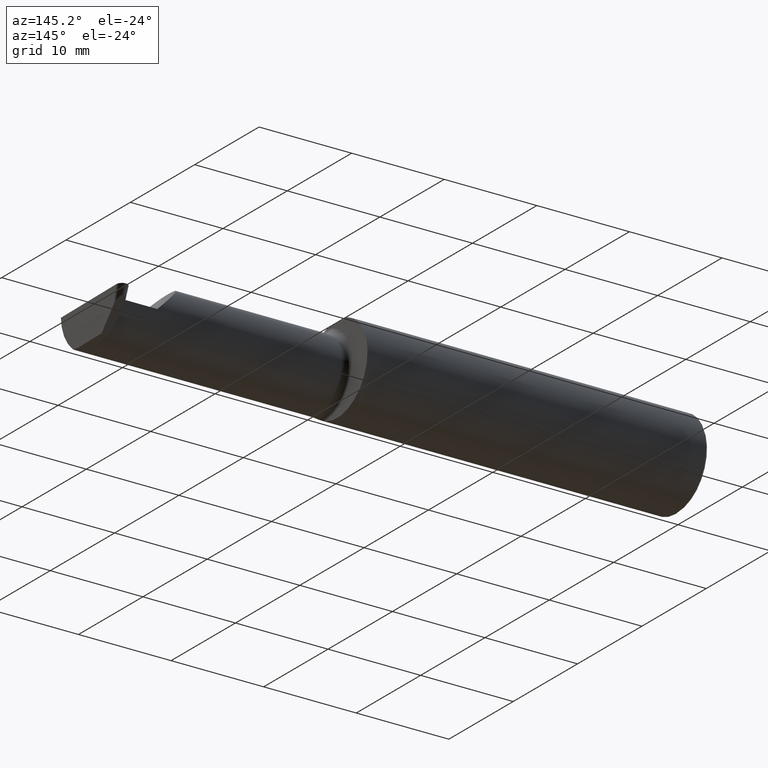
[diagram: clean part render]
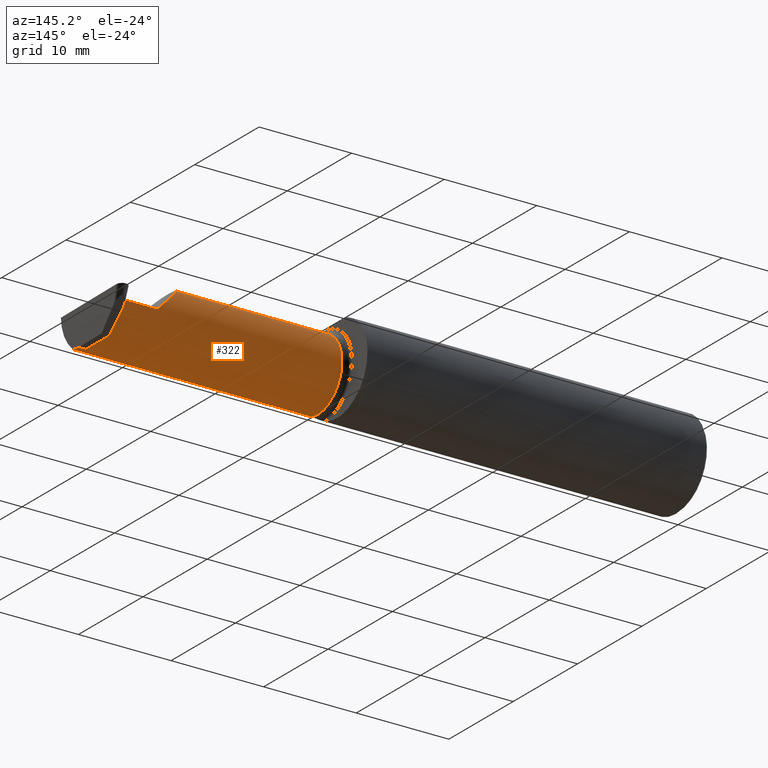
[diagram: same view with one face highlighted and labeled with its STEP entity id]
A machine part, auxiliary view. The second image highlights one B-rep face of the part: STEP entity #322.
In plain terms, the highlighted cylindrical surface (partial cylindrical patch) has radius 3.81 mm, axis along (-1, -0, -0).
Its self-contained STEP definition (entity closure, byte-faithful):
#12 = LINE ( 'NONE', #443, #138 ) ;
#14 = EDGE_CURVE ( 'NONE', #25, #652, #151, .T. ) ;
#19 = CARTESIAN_POINT ( 'NONE',  ( 2.460115337567889249, -0.08334999999999999354, -0.1499999999999999944 ) ) ;
#25 = VERTEX_POINT ( 'NONE', #195 ) ;
#26 = CARTESIAN_POINT ( 'NONE',  ( 2.490497255146305822, -0.08335000000000003517, -0.1500000000000000500 ) ) ;
#31 = VERTEX_POINT ( 'NONE', #35 ) ;
#35 = CARTESIAN_POINT ( 'NONE',  ( 1.474999999999999867, -0.1172600179964005812, -0.1461167706989303650 ) ) ;
#52 = DIRECTION ( 'NONE',  ( 0.000000000000000000, -1.000000000000000000, 0.000000000000000000 ) ) ;
#59 = VECTOR ( 'NONE', #547, 39.37007874015748143 ) ;
#73 = DIRECTION ( 'NONE',  ( -1.000000000000000000, -0.000000000000000000, -0.000000000000000000 ) ) ;
#78 = VERTEX_POINT ( 'NONE', #479 ) ;
#83 =( BOUNDED_CURVE ( )  B_SPLINE_CURVE ( 3, ( #559, #386, #186, #26 ),
 .UNSPECIFIED., .F., .T. ) 
 B_SPLINE_CURVE_WITH_KNOTS ( ( 4, 4 ),
 ( 0.2354267821558766738, 0.4634648172053205673 ),
 .UNSPECIFIED. ) 
 CURVE ( )  GEOMETRIC_REPRESENTATION_ITEM ( )  RATIONAL_B_SPLINE_CURVE ( ( 1.000000000000000000, 0.9956712472009929815, 0.9956712472009929815, 1.000000000000000000 ) ) 
 REPRESENTATION_ITEM ( '' )  );
#85 = ORIENTED_EDGE ( 'NONE', *, *, #444, .F. ) ;
#89 = VECTOR ( 'NONE', #488, 39.37007874015748143 ) ;
#90 = CARTESIAN_POINT ( 'NONE',  ( 2.113883229301068312, -0.1172600179964011224, 0.1461167706989300596 ) ) ;
#105 = ORIENTED_EDGE ( 'NONE', *, *, #670, .F. ) ;
#117 = B_SPLINE_CURVE_WITH_KNOTS ( 'NONE', 3,
 ( #396, #280, #605, #615 ),
 .UNSPECIFIED., .F., .F.,
 ( 4, 4 ),
 ( 0.000000000000000000, 1.000000000000000000 ),
 .UNSPECIFIED. ) ;
#137 = CARTESIAN_POINT ( 'NONE',  ( 2.733184360054361939, -0.08335000000000003517, -0.1500000000000000500 ) ) ;
#138 = VECTOR ( 'NONE', #336, 39.37007874015748143 ) ;
#145 = VERTEX_POINT ( 'NONE', #161 ) ;
#151 =( BOUNDED_CURVE ( )  B_SPLINE_CURVE ( 3, ( #90, #683, #520, #464 ),
 .UNSPECIFIED., .F., .F. ) 
 B_SPLINE_CURVE_WITH_KNOTS ( ( 4, 4 ),
 ( 6.055147272130139591, 7.853981633974482790 ),
 .UNSPECIFIED. ) 
 CURVE ( )  GEOMETRIC_REPRESENTATION_ITEM ( )  RATIONAL_B_SPLINE_CURVE ( ( 1.000000000000000000, 0.7480442670255260662, 0.7480442670255260662, 1.000000000000000000 ) ) 
 REPRESENTATION_ITEM ( '' )  );
#153 = AXIS2_PLACEMENT_3D ( 'NONE', #173, #639, #428 ) ;
#161 = CARTESIAN_POINT ( 'NONE',  ( 1.474999999999999867, -0.1172600179964005812, 0.1461167706989303927 ) ) ;
#173 = CARTESIAN_POINT ( 'NONE',  ( 1.450000000000000178, -0.08335000000000004905, 0.000000000000000000 ) ) ;
#186 = CARTESIAN_POINT ( 'NONE',  ( 2.490297801769516539, -0.09477667630339423055, -0.1499999999999999944 ) ) ;
#195 = CARTESIAN_POINT ( 'NONE',  ( 2.113883229301068312, -0.1172600179964011224, 0.1461167706989300596 ) ) ;
#201 = VECTOR ( 'NONE', #73, 39.37007874015748143 ) ;
#212 = EDGE_CURVE ( 'NONE', #274, #476, #545, .T. ) ;
#219 = CARTESIAN_POINT ( 'NONE',  ( 2.447545874117295739, 0.06664999999999991764, 0.000000000000000000 ) ) ;
#225 = CARTESIAN_POINT ( 'NONE',  ( 2.454977397848501219, 0.06628460753894979685, -0.01046347106162132459 ) ) ;
#241 = ORIENTED_EDGE ( 'NONE', *, *, #537, .T. ) ;
#261 = CARTESIAN_POINT ( 'NONE',  ( 1.474999999999999867, -0.08335000000000004905, 0.000000000000000000 ) ) ;
#266 = LINE ( 'NONE', #137, #201 ) ;
#269 = DIRECTION ( 'NONE',  ( 1.000000000000000000, 5.107097978105302334E-17, 0.000000000000000000 ) ) ;
#274 = VERTEX_POINT ( 'NONE', #225 ) ;
#275 = CARTESIAN_POINT ( 'NONE',  ( 1.449999999999998845, 0.06628460753895425162, -0.01046347106189551672 ) ) ;
#280 = CARTESIAN_POINT ( 'NONE',  ( 2.447302279143278358, 0.06640640502598227357, -0.006975647374414600636 ) ) ;
#318 = VERTEX_POINT ( 'NONE', #498 ) ;
#322 = ADVANCED_FACE ( 'NONE', ( #659 ), #697, .T. ) ;
#331 = VECTOR ( 'NONE', #269, 39.37007874015748143 ) ;
#336 = DIRECTION ( 'NONE',  ( 1.000000000000000000, 5.107097978105302334E-17, 0.000000000000000000 ) ) ;
#337 = ORIENTED_EDGE ( 'NONE', *, *, #14, .T. ) ;
#357 = EDGE_CURVE ( 'NONE', #145, #25, #647, .T. ) ;
#374 = AXIS2_PLACEMENT_3D ( 'NONE', #261, #536, #52 ) ;
#380 = ORIENTED_EDGE ( 'NONE', *, *, #565, .T. ) ;
#386 = CARTESIAN_POINT ( 'NONE',  ( 2.490145048687840479, -0.1061291577212409437, -0.1486999626928446061 ) ) ;
#396 = CARTESIAN_POINT ( 'NONE',  ( 2.447180481656269446, 0.06628460753897344460, -0.01046347106162190572 ) ) ;
#406 = VERTEX_POINT ( 'NONE', #219 ) ;
#421 = ORIENTED_EDGE ( 'NONE', *, *, #442, .F. ) ;
#422 = CARTESIAN_POINT ( 'NONE',  ( 2.490040979592266890, -0.1172600179964006090, -0.1461167706989303650 ) ) ;
#427 = VERTEX_POINT ( 'NONE', #422 ) ;
#428 = DIRECTION ( 'NONE',  ( 0.000000000000000000, -1.000000000000000000, 0.000000000000000000 ) ) ;
#434 = ORIENTED_EDGE ( 'NONE', *, *, #522, .F. ) ;
#442 = EDGE_CURVE ( 'NONE', #145, #31, #506, .T. ) ;
#443 = CARTESIAN_POINT ( 'NONE',  ( 1.450000000000000178, 0.06664999999999995928, 1.285879139104721225E-16 ) ) ;
#444 = EDGE_CURVE ( 'NONE', #318, #78, #266, .T. ) ;
#447 = CARTESIAN_POINT ( 'NONE',  ( 1.963980000000000059, -0.1172600179964006506, -0.1461167706989303650 ) ) ;
#456 = CARTESIAN_POINT ( 'NONE',  ( 2.454977397848501219, 0.06628460753894979685, -0.01046347106162132459 ) ) ;
#464 = CARTESIAN_POINT ( 'NONE',  ( 2.260000000000000231, 0.06665000000000000091, 1.285879139104721225E-16 ) ) ;
#467 = EDGE_CURVE ( 'NONE', #427, #318, #83, .T. ) ;
#476 = VERTEX_POINT ( 'NONE', #607 ) ;
#477 = CARTESIAN_POINT ( 'NONE',  ( 1.963980000000000059, -0.1172600179964006506, 0.1461167706989303650 ) ) ;
#479 = CARTESIAN_POINT ( 'NONE',  ( 2.460115337567889249, -0.08334999999999999354, -0.1499999999999999944 ) ) ;
#486 =( BOUNDED_CURVE ( )  B_SPLINE_CURVE ( 3, ( #19, #513, #671, #456 ),
 .UNSPECIFIED., .F., .F. ) 
 B_SPLINE_CURVE_WITH_KNOTS ( ( 4, 4 ),
 ( 3.176499238629678423, 4.677482395344773280 ),
 .UNSPECIFIED. ) 
 CURVE ( )  GEOMETRIC_REPRESENTATION_ITEM ( )  RATIONAL_B_SPLINE_CURVE ( ( 1.000000000000000000, 0.8209024677461200792, 0.8209024677461200792, 1.000000000000000000 ) ) 
 REPRESENTATION_ITEM ( '' )  );
#488 = DIRECTION ( 'NONE',  ( -1.000000000000000000, -5.107097978105302334E-17, -0.000000000000000000 ) ) ;
#498 = CARTESIAN_POINT ( 'NONE',  ( 2.490497255146305822, -0.08335000000000003517, -0.1500000000000000500 ) ) ;
#500 = LINE ( 'NONE', #447, #59 ) ;
#506 = CIRCLE ( 'NONE', #374, 0.1499999999999999944 ) ;
#512 = CARTESIAN_POINT ( 'NONE',  ( 2.260000000000000231, 0.06665000000000000091, 1.285879139104721225E-16 ) ) ;
#513 = CARTESIAN_POINT ( 'NONE',  ( 2.460012367653796161, -0.0002709026822649160610, -0.1499999999999999944 ) ) ;
#520 = CARTESIAN_POINT ( 'NONE',  ( 2.155331797197862720, 0.06664999999999998703, 0.1046682028021363453 ) ) ;
#522 = EDGE_CURVE ( 'NONE', #78, #274, #486, .T. ) ;
#528 = ORIENTED_EDGE ( 'NONE', *, *, #467, .F. ) ;
#536 = DIRECTION ( 'NONE',  ( -1.000000000000000000, -5.107097978105302334E-17, -0.000000000000000000 ) ) ;
#537 = EDGE_CURVE ( 'NONE', #652, #406, #12, .T. ) ;
#545 = LINE ( 'NONE', #275, #89 ) ;
#547 = DIRECTION ( 'NONE',  ( -1.000000000000000000, -5.107097978105302334E-17, -0.000000000000000000 ) ) ;
#559 = CARTESIAN_POINT ( 'NONE',  ( 2.490040979592266890, -0.1172600179964006090, -0.1461167706989303650 ) ) ;
#565 = EDGE_CURVE ( 'NONE', #427, #31, #500, .T. ) ;
#597 = EDGE_LOOP ( 'NONE', ( #380, #421, #646, #337, #241, #105, #621, #434, #85, #528 ) ) ;
#605 = CARTESIAN_POINT ( 'NONE',  ( 2.447424076630286827, 0.06652820251299110255, -0.003487823687207299451 ) ) ;
#607 = CARTESIAN_POINT ( 'NONE',  ( 2.447180481656269446, 0.06628460753897344460, -0.01046347106162190572 ) ) ;
#615 = CARTESIAN_POINT ( 'NONE',  ( 2.447545874117295739, 0.06664999999999991764, 0.000000000000000000 ) ) ;
#621 = ORIENTED_EDGE ( 'NONE', *, *, #212, .F. ) ;
#639 = DIRECTION ( 'NONE',  ( -1.000000000000000000, -5.107097978105302334E-17, -0.000000000000000000 ) ) ;
#646 = ORIENTED_EDGE ( 'NONE', *, *, #357, .T. ) ;
#647 = LINE ( 'NONE', #477, #331 ) ;
#652 = VERTEX_POINT ( 'NONE', #512 ) ;
#659 = FACE_OUTER_BOUND ( 'NONE', #597, .T. ) ;
#670 = EDGE_CURVE ( 'NONE', #476, #406, #117, .T. ) ;
#671 = CARTESIAN_POINT ( 'NONE',  ( 2.457926070388991580, 0.06048930266824073532, -0.09334019187383284233 ) ) ;
#683 = CARTESIAN_POINT ( 'NONE',  ( 2.090221225029926355, -0.01530148607434194015, 0.1697787749700729321 ) ) ;
#697 = CYLINDRICAL_SURFACE ( 'NONE', #153, 0.1499999999999999944 ) ;